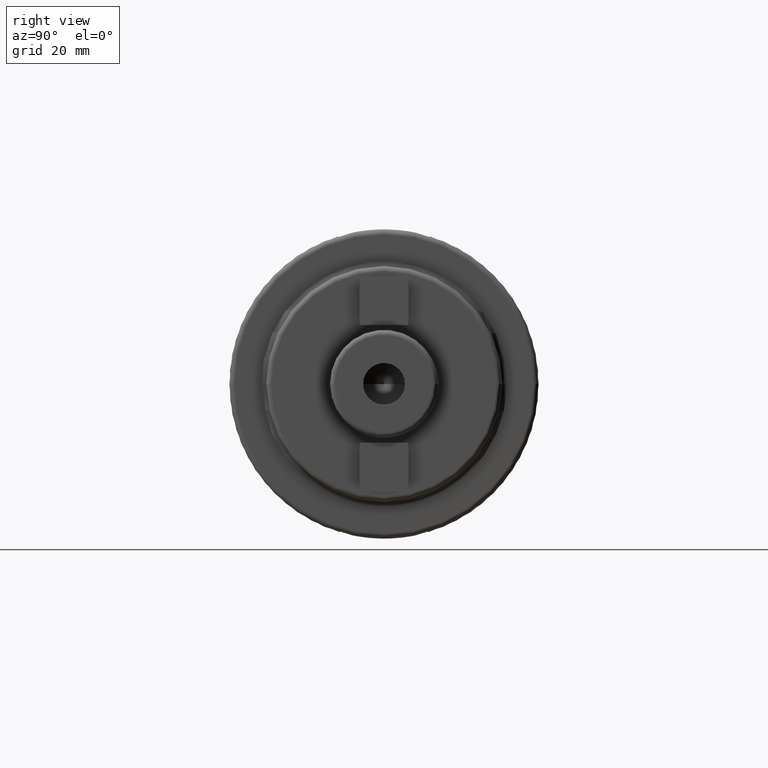
[diagram: clean part render]
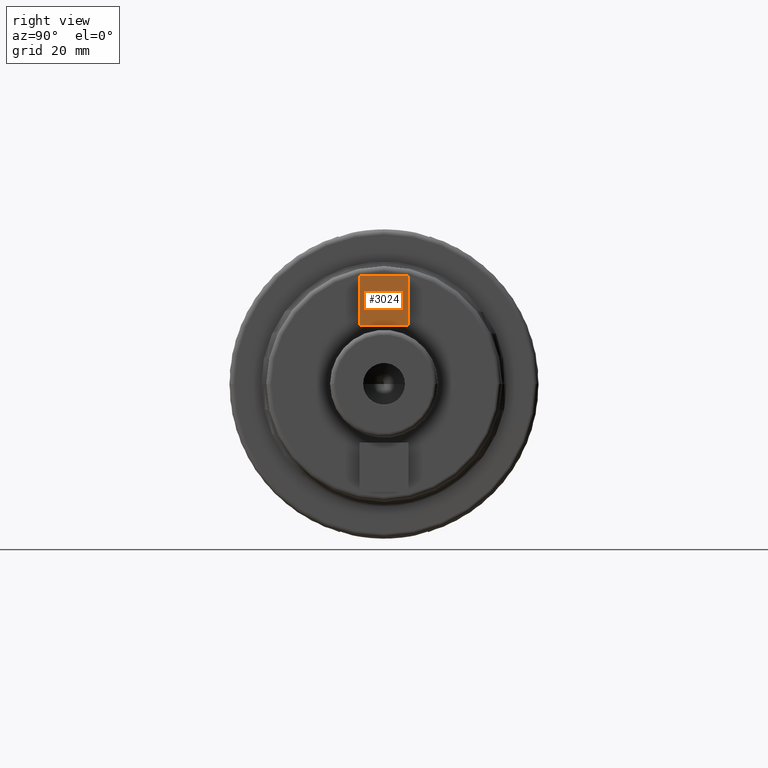
[diagram: same view with one face highlighted and labeled with its STEP entity id]
A machine part, right view. The second image highlights one B-rep face of the part: STEP entity #3024.
In plain terms, the highlighted planar face has unit normal (1, 0, 0).
Its self-contained STEP definition (entity closure, byte-faithful):
#1052=DIRECTION('',(0.E0,0.E0,1.E0));
#1053=VECTOR('',#1052,1.E1);
#1054=CARTESIAN_POINT('',(4.06E1,5.E0,1.2E1));
#1055=LINE('',#1054,#1053);
#1056=DIRECTION('',(0.E0,1.E0,0.E0));
#1057=VECTOR('',#1056,1.E1);
#1058=CARTESIAN_POINT('',(4.06E1,-5.E0,1.2E1));
#1059=LINE('',#1058,#1057);
#1060=DIRECTION('',(0.E0,0.E0,-1.E0));
#1061=VECTOR('',#1060,1.E1);
#1062=CARTESIAN_POINT('',(4.06E1,-5.E0,2.2E1));
#1063=LINE('',#1062,#1061);
#1064=DIRECTION('',(0.E0,-1.E0,0.E0));
#1065=VECTOR('',#1064,1.E1);
#1066=CARTESIAN_POINT('',(4.06E1,5.E0,2.2E1));
#1067=LINE('',#1066,#1065);
#1563=CARTESIAN_POINT('',(4.06E1,5.E0,1.2E1));
#1564=CARTESIAN_POINT('',(4.06E1,5.E0,2.2E1));
#1565=VERTEX_POINT('',#1563);
#1566=VERTEX_POINT('',#1564);
#1567=CARTESIAN_POINT('',(4.06E1,-5.E0,2.2E1));
#1568=VERTEX_POINT('',#1567);
#1569=CARTESIAN_POINT('',(4.06E1,-5.E0,1.2E1));
#1570=VERTEX_POINT('',#1569);
#3009=CARTESIAN_POINT('',(4.06E1,0.E0,0.E0));
#3010=DIRECTION('',(1.E0,0.E0,0.E0));
#3011=DIRECTION('',(0.E0,0.E0,-1.E0));
#3012=AXIS2_PLACEMENT_3D('',#3009,#3010,#3011);
#3013=PLANE('',#3012);
#3015=ORIENTED_EDGE('',*,*,#3014,.F.);
#3017=ORIENTED_EDGE('',*,*,#3016,.F.);
#3019=ORIENTED_EDGE('',*,*,#3018,.F.);
#3021=ORIENTED_EDGE('',*,*,#3020,.F.);
#3022=EDGE_LOOP('',(#3015,#3017,#3019,#3021));
#3023=FACE_OUTER_BOUND('',#3022,.F.);
#3024=ADVANCED_FACE('',(#3023),#3013,.T.);
#3014=EDGE_CURVE('',#1565,#1566,#1055,.T.);
#3016=EDGE_CURVE('',#1570,#1565,#1059,.T.);
#3018=EDGE_CURVE('',#1568,#1570,#1063,.T.);
#3020=EDGE_CURVE('',#1566,#1568,#1067,.T.);